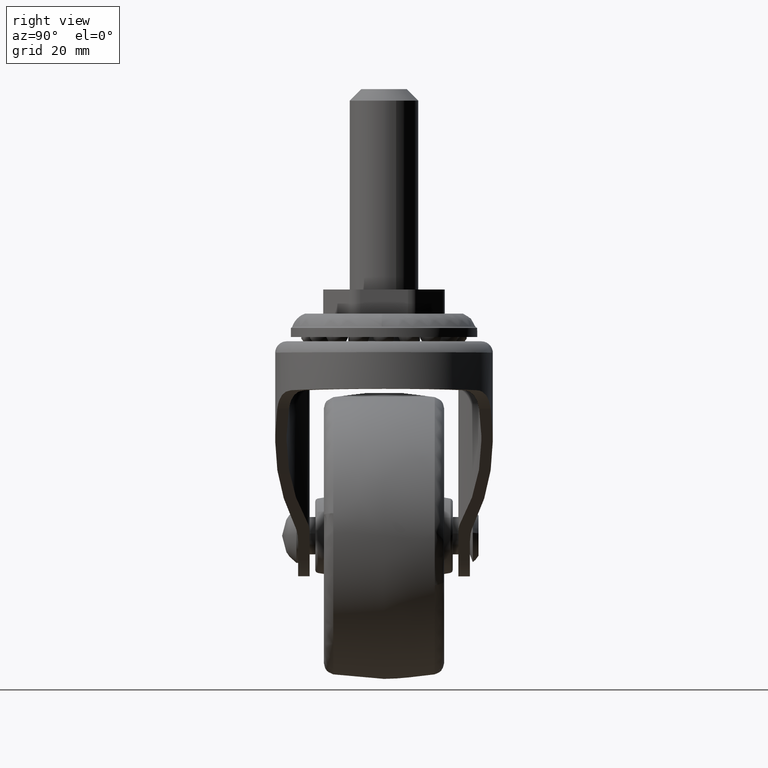
[diagram: clean part render]
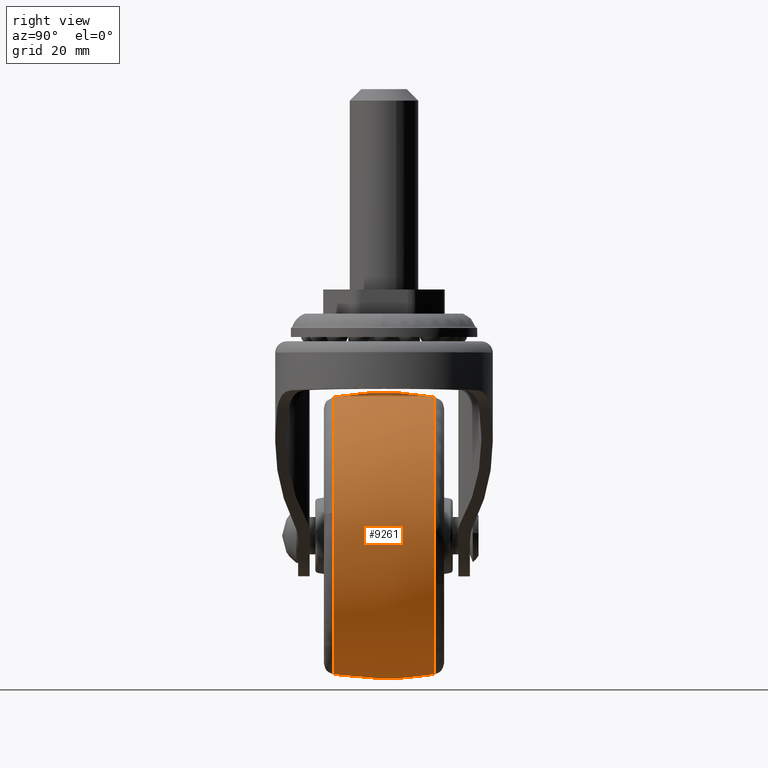
[diagram: same view with one face highlighted and labeled with its STEP entity id]
A machine part, right view. The second image highlights one B-rep face of the part: STEP entity #9261.
In plain terms, the highlighted face is a freeform B-spline surface patch.
Its self-contained STEP definition (entity closure, byte-faithful):
#8449=CARTESIAN_POINT('',(0.0,8.854156047555167,24.209794966911090));
#8450=VERTEX_POINT('',#8449);
#8464=CARTESIAN_POINT('',(22.624161666785600,8.854163295007293,-8.617506265218722));
#8465=VERTEX_POINT('',#8464);
#8466=CARTESIAN_POINT('',(22.624161666785607,8.854163295007293,-8.617506265218722));
#8467=CARTESIAN_POINT('',(24.209793078004346,8.854162262496995,-4.454631689396371));
#8468=CARTESIAN_POINT('',(24.209793078004349,8.854161296655850,0.000000944453372));
#8469=CARTESIAN_POINT('',(24.209793078004356,8.854156047555167,24.209794966911087));
#8470=CARTESIAN_POINT('',(0.0,8.854156047555167,24.209794966911090));
#8478=(BOUNDED_CURVE()B_SPLINE_CURVE(2,(#8466,#8467,#8468,#8469,#8470),.UNSPECIFIED.,.F.,.U.)B_SPLINE_CURVE_WITH_KNOTS((3,2,3),(0.189552765631068,0.250000000000000,0.500000000000000),.UNSPECIFIED.)CURVE()GEOMETRIC_REPRESENTATION_ITEM()RATIONAL_B_SPLINE_CURVE((0.892609502105860,0.929181659829250,1.0,0.707106781186548,1.0))REPRESENTATION_ITEM(''));
#8479=EDGE_CURVE('',#8465,#8450,#8478,.T.);
#8536=CARTESIAN_POINT('',(0.0,8.854166545756531,-24.209793078004349));
#8537=VERTEX_POINT('',#8536);
#8538=CARTESIAN_POINT('',(0.0,8.854166545756531,-24.209793078004349));
#8539=CARTESIAN_POINT('',(16.685084100070057,8.854166545756531,-24.209793078004346));
#8540=CARTESIAN_POINT('',(22.624161666785600,8.854163295007293,-8.617506265218722));
#8548=(BOUNDED_CURVE()B_SPLINE_CURVE(2,(#8538,#8539,#8540),.UNSPECIFIED.,.F.,.U.)B_SPLINE_CURVE_WITH_KNOTS((3,3),(0.0,0.189552765631068),.UNSPECIFIED.)CURVE()GEOMETRIC_REPRESENTATION_ITEM()RATIONAL_B_SPLINE_CURVE((1.0,0.777925121357298,0.892609502105860))REPRESENTATION_ITEM(''));
#8549=EDGE_CURVE('',#8537,#8465,#8548,.T.);
#8551=CARTESIAN_POINT('',(-24.047871854378428,8.854171186964070,2.795335350209184));
#8552=VERTEX_POINT('',#8551);
#8553=CARTESIAN_POINT('',(-24.047871854378435,8.854171186964070,2.795335350209185));
#8554=CARTESIAN_POINT('',(-24.209792269886560,8.854171067262724,1.402357265835230));
#8555=CARTESIAN_POINT('',(-24.209792293911381,8.854170932841264,-0.000000091143315));
#8556=CARTESIAN_POINT('',(-24.209792708667237,8.854168612237492,-24.209793120936261));
#8557=CARTESIAN_POINT('',(0.0,8.854166545756531,-24.209793078004349));
#8565=(BOUNDED_CURVE()B_SPLINE_CURVE(2,(#8553,#8554,#8555,#8556,#8557),.UNSPECIFIED.,.F.,.U.)B_SPLINE_CURVE_WITH_KNOTS((3,2,3),(0.730000208584281,0.750000000000000,1.0),.UNSPECIFIED.)CURVE()GEOMETRIC_REPRESENTATION_ITEM()RATIONAL_B_SPLINE_CURVE((0.956886528735500,0.976568786866610,1.0,0.707106781186548,1.0))REPRESENTATION_ITEM(''));
#8566=EDGE_CURVE('',#8552,#8537,#8565,.T.);
#8617=CARTESIAN_POINT('',(6.669224912788078,-8.854166519641836,-23.273064930118039));
#8618=VERTEX_POINT('',#8617);
#8619=CARTESIAN_POINT('',(23.887463614547560,-8.854162321415831,3.937412292919604));
#8620=VERTEX_POINT('',#8619);
#8621=CARTESIAN_POINT('',(6.669224912788078,-8.854166519641836,-23.273064930118046));
#8622=CARTESIAN_POINT('',(24.209793723120299,-8.854165729741423,-18.246567466762897));
#8623=CARTESIAN_POINT('',(24.209793723120299,-8.854162877690925,0.000000597617257));
#8624=CARTESIAN_POINT('',(24.209793723120299,-8.854162567907897,1.981899973415589));
#8625=CARTESIAN_POINT('',(23.887463614547560,-8.854162321415831,3.937412292919605));
#8633=(BOUNDED_CURVE()B_SPLINE_CURVE(2,(#8621,#8622,#8623,#8624,#8625),.UNSPECIFIED.,.F.,.U.)B_SPLINE_CURVE_WITH_KNOTS((3,2,3),(0.046928271986367,0.250000000000000,0.277993886486346),.UNSPECIFIED.)CURVE()GEOMETRIC_REPRESENTATION_ITEM()RATIONAL_B_SPLINE_CURVE((0.910681108973475,0.762086671728308,1.0,0.967203121919663,0.941751140496026))REPRESENTATION_ITEM(''));
#8634=EDGE_CURVE('',#8618,#8620,#8633,.T.);
#8719=CARTESIAN_POINT('',(0.0,-8.854166661830259,-24.209793723120299));
#8720=VERTEX_POINT('',#8719);
#8721=CARTESIAN_POINT('',(0.0,-8.854166661830259,-24.209793723120299));
#8722=CARTESIAN_POINT('',(3.400396771658258,-8.854166661830259,-24.209793723120299));
#8723=CARTESIAN_POINT('',(6.669224912788078,-8.854166519641836,-23.273064930118046));
#8731=(BOUNDED_CURVE()B_SPLINE_CURVE(2,(#8721,#8722,#8723),.UNSPECIFIED.,.F.,.U.)B_SPLINE_CURVE_WITH_KNOTS((3,3),(0.0,0.046928271986367),.UNSPECIFIED.)CURVE()GEOMETRIC_REPRESENTATION_ITEM()RATIONAL_B_SPLINE_CURVE((1.0,0.945020109458240,0.910681108973475))REPRESENTATION_ITEM(''));
#8732=EDGE_CURVE('',#8720,#8618,#8731,.T.);
#8781=CARTESIAN_POINT('',(0.0,-8.854159093551591,24.209794918354810));
#8782=VERTEX_POINT('',#8781);
#8783=CARTESIAN_POINT('',(23.887463614547556,-8.854162321415833,3.937412292919604));
#8784=CARTESIAN_POINT('',(20.545931765662814,-8.854159093551591,24.209794918354806));
#8785=CARTESIAN_POINT('',(0.0,-8.854159093551591,24.209794918354810));
#8793=(BOUNDED_CURVE()B_SPLINE_CURVE(2,(#8783,#8784,#8785),.UNSPECIFIED.,.F.,.U.)B_SPLINE_CURVE_WITH_KNOTS((3,3),(0.277993886486346,0.500000000000000),.UNSPECIFIED.)CURVE()GEOMETRIC_REPRESENTATION_ITEM()RATIONAL_B_SPLINE_CURVE((0.941751140496025,0.739903659266885,1.0))REPRESENTATION_ITEM(''));
#8794=EDGE_CURVE('',#8620,#8782,#8793,.T.);
#8796=CARTESIAN_POINT('',(-24.047873002769229,-8.854166599698012,2.795335503187974));
#8797=VERTEX_POINT('',#8796);
#8811=CARTESIAN_POINT('',(-24.047873002769222,-8.854166599698012,2.795335503187973));
#8812=CARTESIAN_POINT('',(-24.209793723120299,-8.854166661830259,1.402357406851650));
#8813=CARTESIAN_POINT('',(-24.209793723120299,-8.854166661830259,1.316451E-015));
#8814=CARTESIAN_POINT('',(-24.209793723120292,-8.854166661830261,-24.209793723120292));
#8815=CARTESIAN_POINT('',(0.0,-8.854166661830259,-24.209793723120299));
#8823=(BOUNDED_CURVE()B_SPLINE_CURVE(2,(#8811,#8812,#8813,#8814,#8815),.UNSPECIFIED.,.F.,.U.)B_SPLINE_CURVE_WITH_KNOTS((3,2,3),(0.730000208449019,0.750000000000000,1.0),.UNSPECIFIED.)CURVE()GEOMETRIC_REPRESENTATION_ITEM()RATIONAL_B_SPLINE_CURVE((0.956886528469270,0.976568786708140,1.0,0.707106781186547,1.0))REPRESENTATION_ITEM(''));
#8824=EDGE_CURVE('',#8797,#8720,#8823,.T.);
#9169=CARTESIAN_POINT('',(-23.880277738022151,-9.745417081588716,2.775883382903433));
#9170=CARTESIAN_POINT('',(-24.832791040827093,-4.919886659880164,2.886605120659473));
#9171=CARTESIAN_POINT('',(-24.832791040827100,0.0,2.886605120659473));
#9172=CARTESIAN_POINT('',(-24.832791040827097,4.919888229607728,2.886605120659474));
#9173=CARTESIAN_POINT('',(-23.880277136037193,9.745420131305941,2.775883312927695));
#9174=CARTESIAN_POINT('',(-24.041073050106466,-9.745417081588711,1.392598791340626));
#9175=CARTESIAN_POINT('',(-25.000000000000004,-4.919886659880163,1.448145418091538));
#9176=CARTESIAN_POINT('',(-25.0,0.0,1.448145418091539));
#9177=CARTESIAN_POINT('',(-25.000000000000004,4.919888229607728,1.448145418091538));
#9178=CARTESIAN_POINT('',(-24.041072444068114,9.745420131305943,1.392598756235359));
#9179=CARTESIAN_POINT('',(-24.041073050106469,-9.745417081588712,0.0));
#9180=CARTESIAN_POINT('',(-25.000000000000007,-4.919886659880164,0.0));
#9181=CARTESIAN_POINT('',(-25.0,0.0,0.0));
#9182=CARTESIAN_POINT('',(-25.0,4.919888229607729,0.0));
#9183=CARTESIAN_POINT('',(-24.041072444068117,9.745420131305941,0.0));
#9184=CARTESIAN_POINT('',(-24.041073050106473,-9.745417081588712,-24.041073050106473));
#9185=CARTESIAN_POINT('',(-24.999999999999996,-4.919886659880164,-24.999999999999996));
#9186=CARTESIAN_POINT('',(-25.0,0.0,-25.0));
#9187=CARTESIAN_POINT('',(-25.000000000000007,4.919888229607730,-25.000000000000007));
#9188=CARTESIAN_POINT('',(-24.041072444068121,9.745420131305941,-24.041072444068121));
#9189=CARTESIAN_POINT('',(0.0,-9.745417081588712,-24.041073050106469));
#9190=CARTESIAN_POINT('',(0.0,-4.919886659880164,-25.000000000000007));
#9191=CARTESIAN_POINT('',(0.0,0.0,-25.0));
#9192=CARTESIAN_POINT('',(0.0,4.919888229607729,-25.0));
#9193=CARTESIAN_POINT('',(0.0,9.745420131305941,-24.041072444068117));
#9194=CARTESIAN_POINT('',(24.041073050106473,-9.745417081588712,-24.041073050106473));
#9195=CARTESIAN_POINT('',(24.999999999999996,-4.919886659880164,-24.999999999999996));
#9196=CARTESIAN_POINT('',(25.0,0.0,-25.0));
#9197=CARTESIAN_POINT('',(25.000000000000007,4.919888229607730,-25.000000000000007));
#9198=CARTESIAN_POINT('',(24.041072444068121,9.745420131305941,-24.041072444068121));
#9199=CARTESIAN_POINT('',(24.041073050106469,-9.745417081588712,0.0));
#9200=CARTESIAN_POINT('',(25.000000000000007,-4.919886659880164,0.0));
#9201=CARTESIAN_POINT('',(25.0,0.0,0.0));
#9202=CARTESIAN_POINT('',(25.0,4.919888229607729,0.0));
#9203=CARTESIAN_POINT('',(24.041072444068117,9.745420131305941,0.0));
#9204=CARTESIAN_POINT('',(24.041073050106473,-9.745417081588712,24.041073050106473));
#9205=CARTESIAN_POINT('',(24.999999999999996,-4.919886659880164,24.999999999999996));
#9206=CARTESIAN_POINT('',(25.0,0.0,25.0));
#9207=CARTESIAN_POINT('',(25.000000000000007,4.919888229607730,25.000000000000007));
#9208=CARTESIAN_POINT('',(24.041072444068121,9.745420131305941,24.041072444068121));
#9209=CARTESIAN_POINT('',(0.0,-9.745417081588712,24.041073050106469));
#9210=CARTESIAN_POINT('',(0.0,-4.919886659880164,25.000000000000007));
#9211=CARTESIAN_POINT('',(0.0,0.0,25.0));
#9212=CARTESIAN_POINT('',(0.0,4.919888229607729,25.0));
#9213=CARTESIAN_POINT('',(0.0,9.745420131305941,24.041072444068117));
#9221=(BOUNDED_SURFACE()B_SPLINE_SURFACE(2,2,((#9169,#9174,#9179,#9184,#9189,#9194,#9199,#9204,#9209),(#9170,#9175,#9180,#9185,#9190,#9195,#9200,#9205,#9210),(#9171,#9176,#9181,#9186,#9191,#9196,#9201,#9206,#9211),(#9172,#9177,#9182,#9187,#9192,#9197,#9202,#9207,#9212),(#9173,#9178,#9183,#9188,#9193,#9198,#9203,#9208,#9213)),.UNSPECIFIED.,.F.,.F.,.U.)B_SPLINE_SURFACE_WITH_KNOTS((3,2,3),(3,2,2,2,3),(0.0,10.002360886167780,20.004724881685629),(0.0,3.313707807691297,44.735064045000797,86.156420282310307,127.577776519619800),.UNSPECIFIED.)GEOMETRIC_REPRESENTATION_ITEM()RATIONAL_B_SPLINE_SURFACE(((0.917150804589968,0.936015900174770,0.958474346407116,0.677743709937816,0.958474346407116,0.677743709937816,0.958474346407116,0.677743709937816,0.958474346407116),(0.932305343039136,0.951482155971790,0.974311694270167,0.688942406007789,0.974311694270167,0.688942406007789,0.974311694270167,0.688942406007789,0.974311694270167),(0.956886126402807,0.976568547383107,1.0,0.707106781186548,1.0,0.707106781186548,1.0,0.707106781186548,1.0),(0.932305335397914,0.951482148173394,0.974311686284658,0.688942400361182,0.974311686284658,0.688942400361182,0.974311686284658,0.688942400361182,0.974311686284658),(0.917150795168040,0.936015890559041,0.958474336560670,0.677743702975327,0.958474336560670,0.677743702975327,0.958474336560670,0.677743702975327,0.958474336560670)))REPRESENTATION_ITEM('')SURFACE());
#9222=ORIENTED_EDGE('',*,*,#8566,.T.);
#9223=ORIENTED_EDGE('',*,*,#8549,.T.);
#9224=ORIENTED_EDGE('',*,*,#8479,.T.);
#9225=CARTESIAN_POINT('',(0.0,-8.854159093551591,24.209794918354810));
#9226=CARTESIAN_POINT('',(0.0,-4.462341171536547,24.999999999999996));
#9227=CARTESIAN_POINT('',(0.0,0.0,25.0));
#9228=CARTESIAN_POINT('',(0.0,4.462339656335520,24.999999999999996));
#9229=CARTESIAN_POINT('',(0.0,8.854156047555167,24.209794966911094));
#9237=(BOUNDED_CURVE()B_SPLINE_CURVE(2,(#9225,#9226,#9227,#9228,#9229),.UNSPECIFIED.,.F.,.U.)B_SPLINE_CURVE_WITH_KNOTS((3,2,3),(0.412837545875617,0.500000000000000,0.587162425219340),.UNSPECIFIED.)CURVE()GEOMETRIC_REPRESENTATION_ITEM()RATIONAL_B_SPLINE_CURVE((0.961432536148513,0.976644890807057,1.0,0.976644898552140,0.961432546238036))REPRESENTATION_ITEM(''));
#9238=EDGE_CURVE('',#8782,#8450,#9237,.T.);
#9239=ORIENTED_EDGE('',*,*,#9238,.F.);
#9240=ORIENTED_EDGE('',*,*,#8794,.F.);
#9241=ORIENTED_EDGE('',*,*,#8634,.F.);
#9242=ORIENTED_EDGE('',*,*,#8732,.F.);
#9243=ORIENTED_EDGE('',*,*,#8824,.F.);
#9244=CARTESIAN_POINT('',(-24.047873002769229,-8.854166599698012,2.795335503187974));
#9245=CARTESIAN_POINT('',(-24.832794655797372,-4.462345073752226,2.886576122354619));
#9246=CARTESIAN_POINT('',(-24.832794575622408,-0.000000029018466,2.886576108124167));
#9247=CARTESIAN_POINT('',(-24.832794495447398,4.462347394460780,2.886576093893707));
#9248=CARTESIAN_POINT('',(-24.047871854378432,8.854171186964070,2.795335350209184));
#9256=(BOUNDED_CURVE()B_SPLINE_CURVE(2,(#9244,#9245,#9246,#9247,#9248),.UNSPECIFIED.,.F.,.U.)B_SPLINE_CURVE_WITH_KNOTS((3,2,3),(0.412837472266709,0.500000000000000,0.587162573111914),.UNSPECIFIED.)CURVE()GEOMETRIC_REPRESENTATION_ITEM()RATIONAL_B_SPLINE_CURVE((0.919981422831372,0.934537919542012,0.956886118190660,0.934537907907076,0.919981407674545))REPRESENTATION_ITEM(''));
#9257=EDGE_CURVE('',#8797,#8552,#9256,.T.);
#9258=ORIENTED_EDGE('',*,*,#9257,.T.);
#9259=EDGE_LOOP('',(#9222,#9223,#9224,#9239,#9240,#9241,#9242,#9243,#9258));
#9260=FACE_OUTER_BOUND('',#9259,.T.);
#9261=ADVANCED_FACE('',(#9260),#9221,.T.);